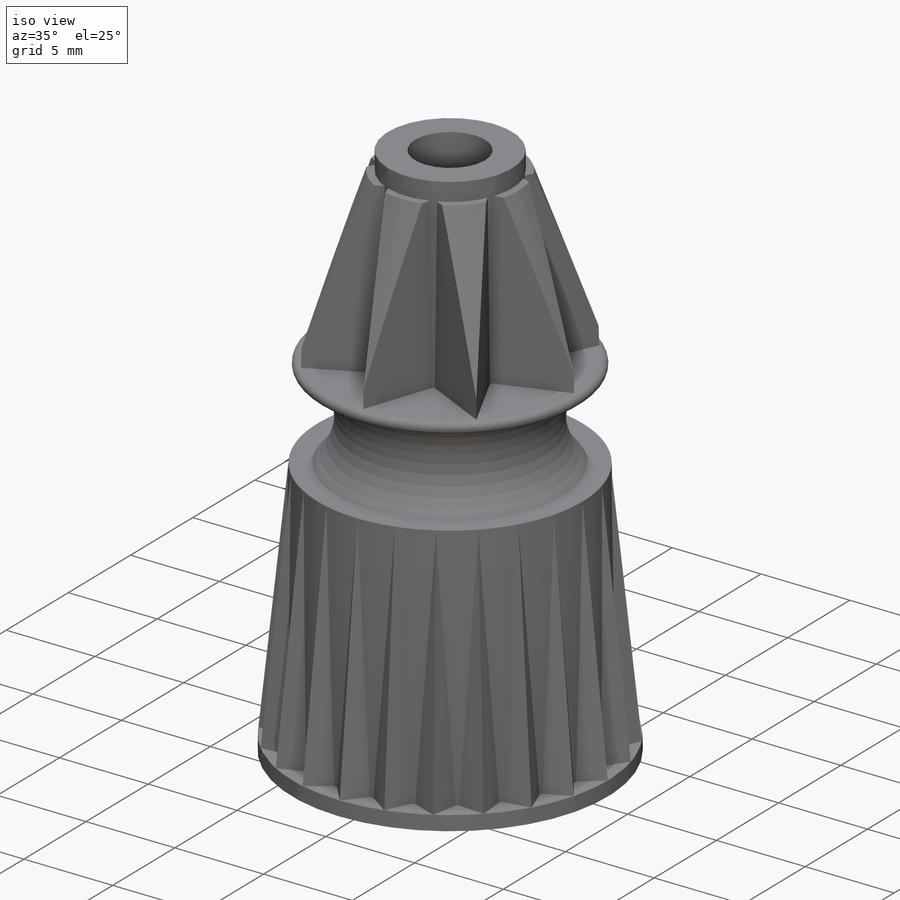
[diagram: iso view]
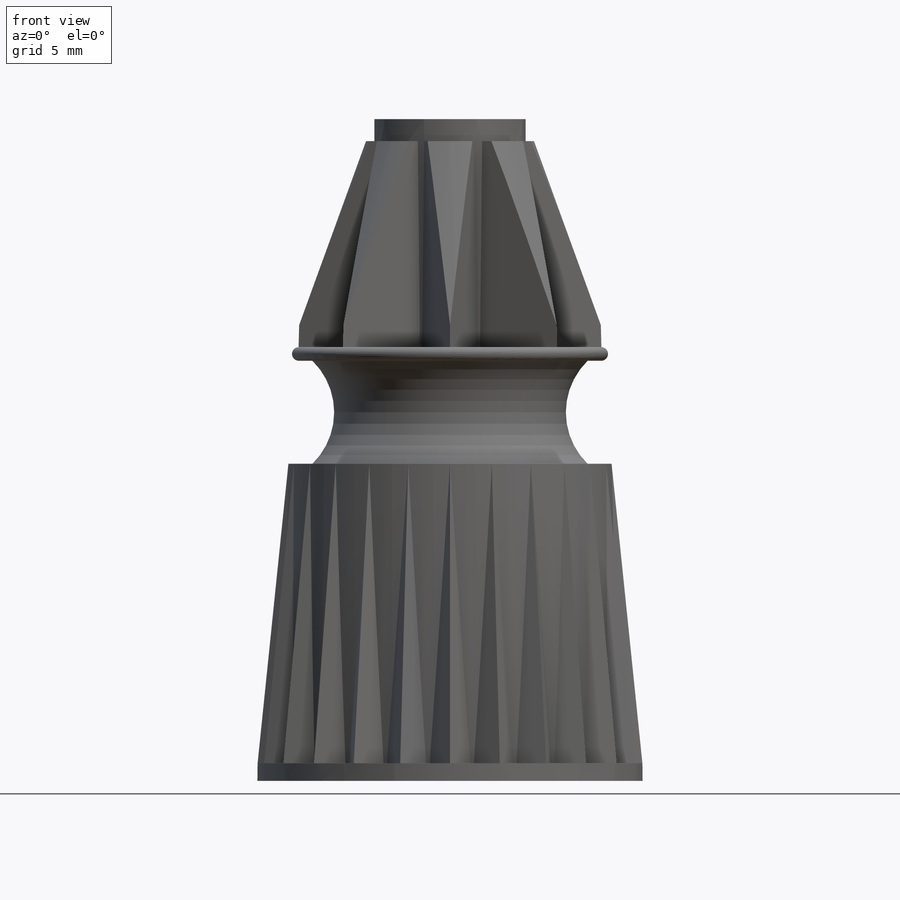
[diagram: front view]
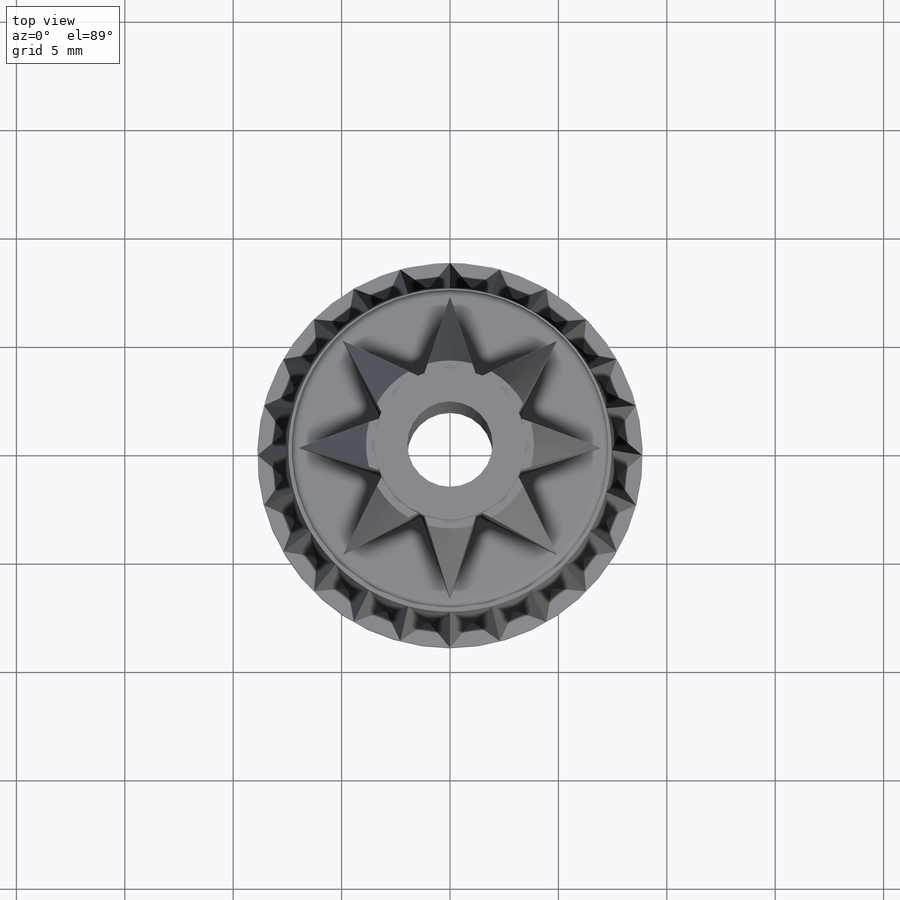
[diagram: top view]
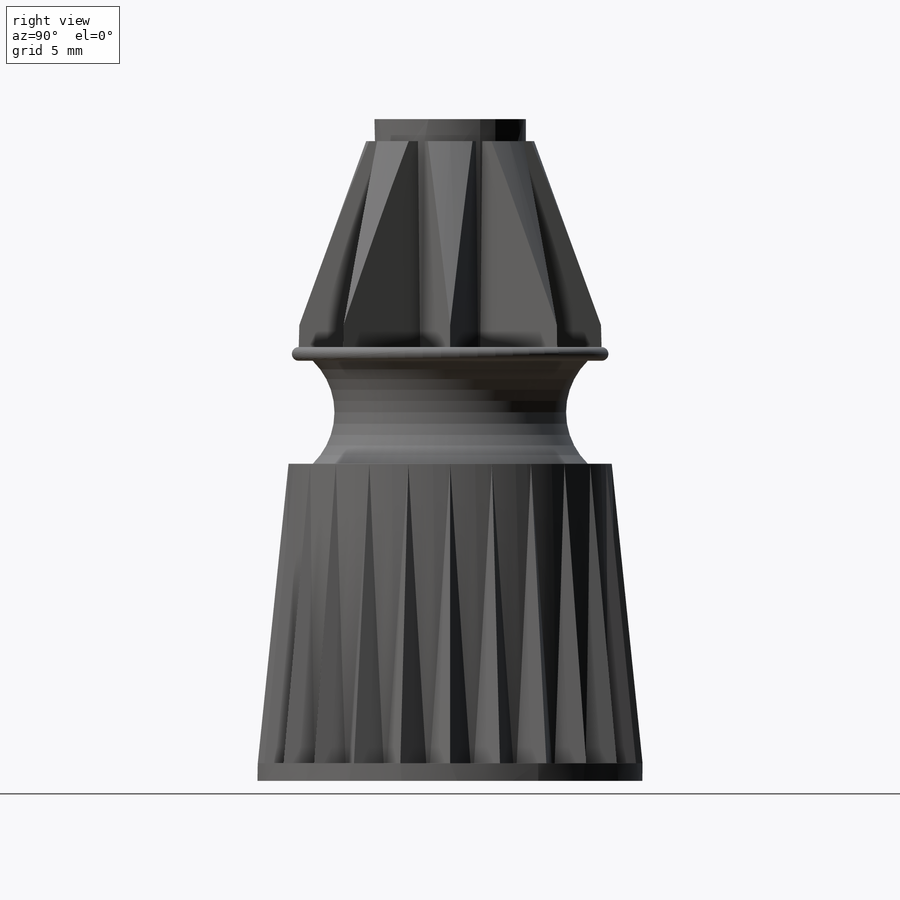
[diagram: right view]
SOLIDWORKS PART (.sldprt)
format: sldprt  version: not decoded by parser v0  size: 566,784 bytes
history: native  units: mm
features: sketch x12, extrude x3, plane x2, pattern_circular x2, cut_revolve x2, fillet x2, material x1, sweep x1, revolve x1, cut_extrude x1 (+12 scaffold rows collapsed)
feature tree (39):
  scaffold x12  (default folders/planes/origin — collapsed)
  material  "CA"
  sketch  "Sketch1"  dims[D1=17.78mm]
  extrude  "Boss-Extrude1"  Depth=0.8128mm
  plane  "Plane1"  Offset=14.6304mm
  sketch  "Sketch2"  dims[D1=14.9098mm]
  sketch  "Sketch3"  dims[D1=15.621mm]
  sketch  "Sketch4"
  plane  "Plane2"
  sketch  "Sketch5"  dims[c1.D1=~1.24307mm c2.D1=80.0deg c2.D2=1.524mm]
  sweep  "Sweep1"
  pattern_circular  "CirPattern1"  Count=24 Angle=360deg
  sketch  "Sketch7"  dims[c1.D4=~3.874285mm c1.D1=0.762mm c1.D2=0.635mm c1.D3=0.635mm c2.D4=10.6934mm c2.D1=12.7mm c2.D5=4.7498mm]
  revolve  "Revolve1"  Angle=360deg
  sketch  "Sketch8"  dims[D1=6.985mm]
  extrude  "Boss-Extrude2"  Depth=30.5308mm
  sketch  "Sketch9"  dims[D1=3.937mm]
  cut_extrude  "Cut-Extrude1"  [1 undecoded]
  sketch  "Sketch10"  dims[c1.D1=~4.549014mm c1.D2=~4.549014mm c2.D2=38.0deg]
  extrude  "Boss-Extrude3"  Depth=1.016mm
  pattern_circular  "CirPattern2"  Count=8 Angle=360deg
  sketch  "Sketch11"  dims[D1=1.016mm D2=0.508mm D3=0.381mm]
  cut_revolve  "Cut-Revolve1"  Angle=360deg
  sketch  "Sketch12"  dims[c1.D1=5.842mm c1.D6=13.462mm c1.D3=~15.73525mm c2.D3=1.0deg c2.D4=15.6464mm c2.D5=~28.192767mm c3.D5=2.0deg c3.D7=2.54mm c3.D10=1.778mm c3.D11=2.9972mm c3.D2=1.016mm c3.D8=0.1778mm c3.D9=0.1778mm]
  cut_revolve  "Cut-Revolve2"  Angle=360deg
  fillet  "Fillet1"  Radius=0.762mm
  sketch  "Sketch13"  dims[D1=1.016mm D3=1.0deg]
  fillet  "Fillet2"  Radius=0.508mm
decode coverage: 21 of 24 modeling features carry decoded parameters
note: ~ marks probable driven/reference dimensions
note: 1 parameter value undecoded
note: suppression state not decoded; provenance and decode notes live in map.json
